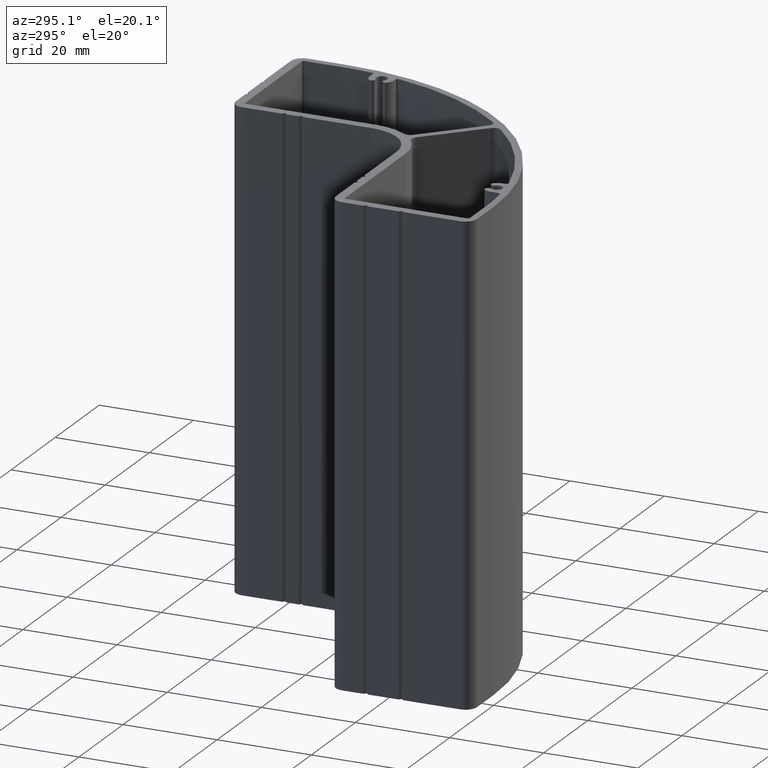
[diagram: clean part render]
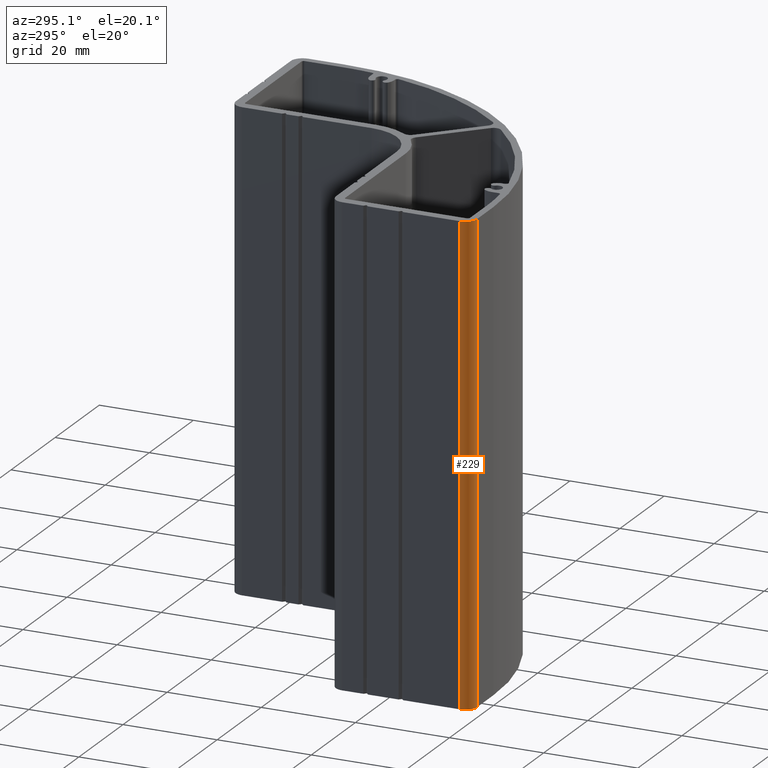
[diagram: same view with one face highlighted and labeled with its STEP entity id]
A machine part, auxiliary view. The second image highlights one B-rep face of the part: STEP entity #229.
In plain terms, the highlighted cylindrical surface (edge-blend (fillet) strip) has radius 2.5 mm, axis along (0, 0, 1).
Its self-contained STEP definition (entity closure, byte-faithful):
#172=CARTESIAN_POINT('',(-30.0,-37.500000000000000,0.0));
#173=VERTEX_POINT('',#172);
#180=CARTESIAN_POINT('',(-30.0,-37.500000000000000,100.0));
#181=VERTEX_POINT('',#180);
#182=CARTESIAN_POINT('',(-30.0,-37.500000000000000,100.0));
#183=DIRECTION('',(0.0,0.0,-1.0));
#184=VECTOR('',#183,100.0);
#185=LINE('',#182,#184);
#186=EDGE_CURVE('',#181,#173,#185,.T.);
#197=CARTESIAN_POINT('',(-27.500000000000000,-37.500000000000000,100.0));
#198=DIRECTION('',(0.0,0.0,1.0));
#199=DIRECTION('',(1.0,0.0,0.0));
#200=AXIS2_PLACEMENT_3D('',#197,#198,#199);
#201=CYLINDRICAL_SURFACE('',#200,2.500000000000000);
#202=ORIENTED_EDGE('',*,*,#186,.T.);
#203=CARTESIAN_POINT('',(-27.500000000000000,-40.0,0.0));
#204=VERTEX_POINT('',#203);
#205=CARTESIAN_POINT('',(-27.500000000000000,-37.500000000000000,0.0));
#206=DIRECTION('',(0.0,0.0,1.0));
#207=DIRECTION('',(1.0,0.0,0.0));
#208=AXIS2_PLACEMENT_3D('',#205,#206,#207);
#209=CIRCLE('',#208,2.500000000000000);
#210=EDGE_CURVE('',#173,#204,#209,.T.);
#211=ORIENTED_EDGE('',*,*,#210,.T.);
#212=CARTESIAN_POINT('',(-27.500000000000000,-40.0,100.0));
#213=VERTEX_POINT('',#212);
#214=CARTESIAN_POINT('',(-27.500000000000000,-40.0,100.0));
#215=DIRECTION('',(0.0,0.0,-1.0));
#216=VECTOR('',#215,100.0);
#217=LINE('',#214,#216);
#218=EDGE_CURVE('',#213,#204,#217,.T.);
#219=ORIENTED_EDGE('',*,*,#218,.F.);
#220=CARTESIAN_POINT('',(-27.500000000000000,-37.500000000000000,100.0));
#221=DIRECTION('',(0.0,0.0,1.0));
#222=DIRECTION('',(1.0,0.0,0.0));
#223=AXIS2_PLACEMENT_3D('',#220,#221,#222);
#224=CIRCLE('',#223,2.500000000000000);
#225=EDGE_CURVE('',#181,#213,#224,.T.);
#226=ORIENTED_EDGE('',*,*,#225,.F.);
#227=EDGE_LOOP('',(#202,#211,#219,#226));
#228=FACE_OUTER_BOUND('',#227,.T.);
#229=ADVANCED_FACE('',(#228),#201,.T.);